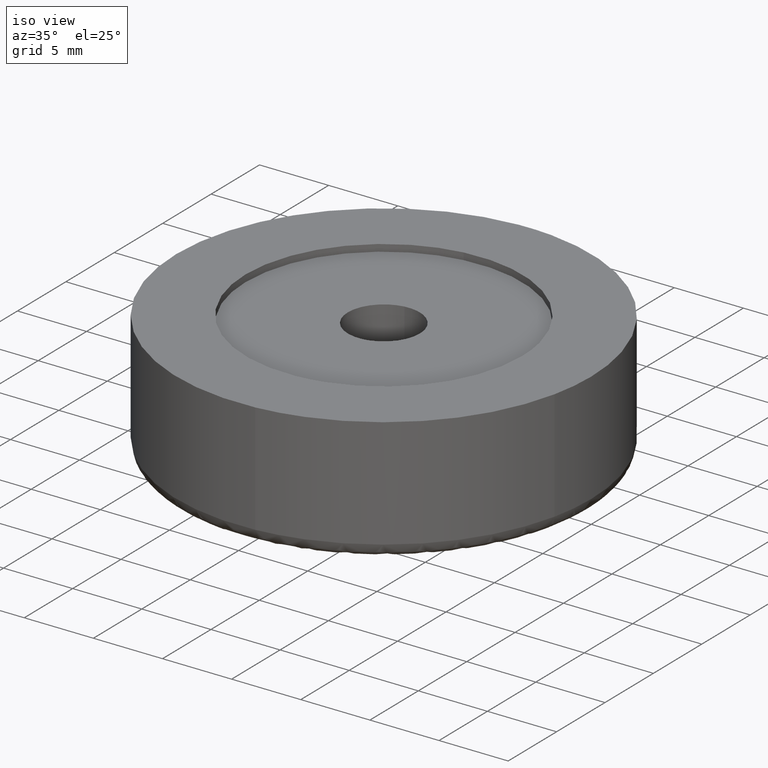
[diagram: clean part render]
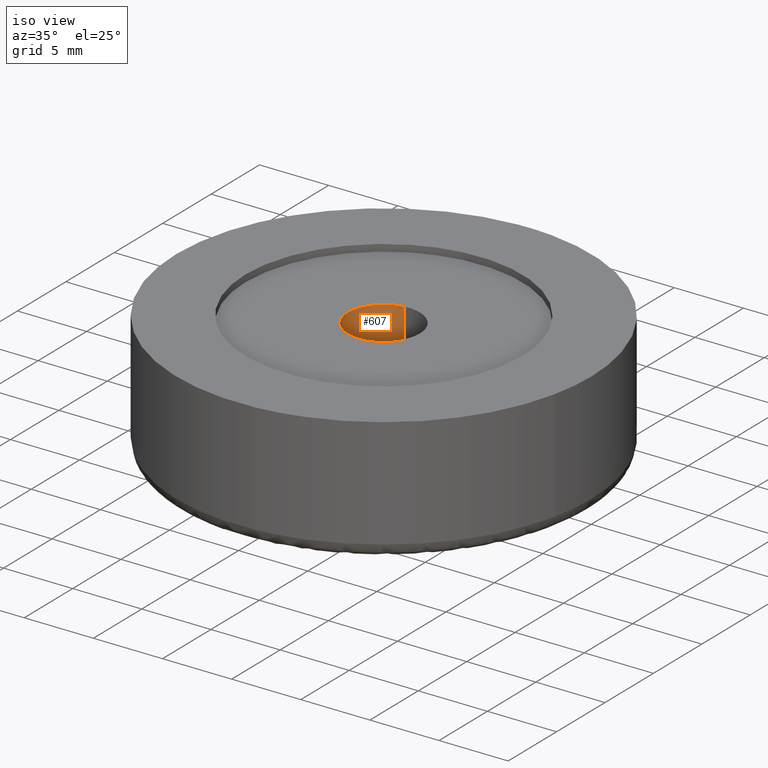
[diagram: same view with one face highlighted and labeled with its STEP entity id]
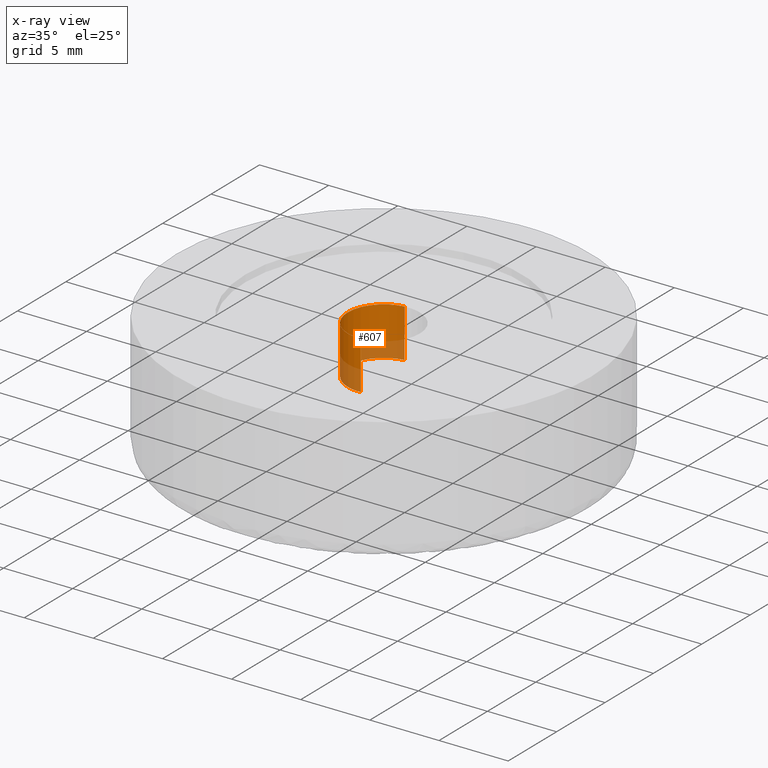
[diagram: x-ray of the same camera — body ghosted, the highlighted face saturated]
A machine part, iso view. The second image highlights one B-rep face of the part: STEP entity #607.
The next image is the same camera in x-ray: the body ghosted, the highlighted face saturated — about 32% of this face is hidden behind the body in this view.
In plain terms, the highlighted face is a freeform B-spline surface patch.
Its self-contained STEP definition (entity closure, byte-faithful):
#444=CARTESIAN_POINT('',(-0.306886087264373,2.581825115966397,4.999999999999961));
#445=VERTEX_POINT('',#444);
#463=CARTESIAN_POINT('',(0.158726202832254,-2.595150475894308,5.0));
#464=VERTEX_POINT('',#463);
#478=CARTESIAN_POINT('',(0.158726202832255,-2.595150475894308,8.500000000000000));
#479=VERTEX_POINT('',#478);
#480=CARTESIAN_POINT('',(0.158726202832255,-2.595150475894308,8.500000000000000));
#481=CARTESIAN_POINT('',(0.158726202832254,-2.595150475894308,5.0));
#482=QUASI_UNIFORM_CURVE('',1,(#480,#481),.UNSPECIFIED.,.F.,.U.);
#483=EDGE_CURVE('',#479,#464,#482,.T.);
#500=CARTESIAN_POINT('',(-0.306886123398112,2.581825111671437,8.500000000000002));
#501=VERTEX_POINT('',#500);
#517=CARTESIAN_POINT('',(-0.306886123398112,2.581825111671437,8.500000000000002));
#518=CARTESIAN_POINT('',(-0.306886087264373,2.581825115966397,4.999999999999961));
#519=QUASI_UNIFORM_CURVE('',1,(#517,#518),.UNSPECIFIED.,.F.,.U.);
#520=EDGE_CURVE('',#501,#445,#519,.T.);
#525=CARTESIAN_POINT('',(0.158726202790628,-2.595150475896853,8.587500000000002));
#526=CARTESIAN_POINT('',(-2.436424273106225,-2.753876678687481,8.587500000000002));
#527=CARTESIAN_POINT('',(-2.595150475896853,-0.158726202790628,8.587500000000002));
#528=CARTESIAN_POINT('',(-2.745044111504571,2.292013076182702,8.587500000000002));
#529=CARTESIAN_POINT('',(-0.306889010107572,2.581824768545533,8.587500000000002));
#530=CARTESIAN_POINT('',(0.158726202790628,-2.595150475896853,4.910312499999999));
#531=CARTESIAN_POINT('',(-2.436424273106225,-2.753876678687481,4.910312500000000));
#532=CARTESIAN_POINT('',(-2.595150475896853,-0.158726202790628,4.910312499999999));
#533=CARTESIAN_POINT('',(-2.745044111504571,2.292013076182702,4.910312499999999));
#534=CARTESIAN_POINT('',(-0.306889010107572,2.581824768545533,4.910312499999999));
#542=(BOUNDED_SURFACE()B_SPLINE_SURFACE(2,1,((#525,#530),(#526,#531),(#527,#532),(#528,#533),(#529,#534)),.UNSPECIFIED.,.F.,.F.,.U.)B_SPLINE_SURFACE_WITH_KNOTS((3,2,3),(2,2),(0.0,4.307821048680188,8.443329255413167),(0.0,3.677187500000004),.UNSPECIFIED.)GEOMETRIC_REPRESENTATION_ITEM()RATIONAL_B_SPLINE_SURFACE(((1.0,1.0),(0.707106781186548,0.707106781186548),(1.0,1.0),(0.718822509939086,0.718822509939086),(0.977505800795127,0.977505800795127)))REPRESENTATION_ITEM('')SURFACE());
#543=CARTESIAN_POINT('',(-2.600000000000000,0.0,5.0));
#544=VERTEX_POINT('',#543);
#545=CARTESIAN_POINT('',(-2.600000000000000,0.0,5.0));
#546=CARTESIAN_POINT('',(-2.600000000000001,2.309256400148017,5.000000000000001));
#547=CARTESIAN_POINT('',(-0.306886087264373,2.581825115966398,4.999999999999961));
#555=(BOUNDED_CURVE()B_SPLINE_CURVE(2,(#545,#546,#547),.UNSPECIFIED.,.F.,.U.)B_SPLINE_CURVE_WITH_KNOTS((3,3),(0.0,0.229562664841577),.UNSPECIFIED.)CURVE()GEOMETRIC_REPRESENTATION_ITEM()RATIONAL_B_SPLINE_CURVE((1.0,0.731050608700628,0.956027129194886))REPRESENTATION_ITEM(''));
#556=EDGE_CURVE('',#544,#445,#555,.T.);
#557=ORIENTED_EDGE('',*,*,#556,.T.);
#558=ORIENTED_EDGE('',*,*,#520,.F.);
#559=CARTESIAN_POINT('',(-2.600000000000000,0.0,8.500000000000000));
#560=VERTEX_POINT('',#559);
#561=CARTESIAN_POINT('',(-2.600000000000000,0.0,8.500000000000000));
#562=CARTESIAN_POINT('',(-2.600000000000000,2.309256367601487,8.500000000000000));
#563=CARTESIAN_POINT('',(-0.306886123398112,2.581825111671437,8.500000000000002));
#571=(BOUNDED_CURVE()B_SPLINE_CURVE(2,(#561,#562,#563),.UNSPECIFIED.,.F.,.U.)B_SPLINE_CURVE_WITH_KNOTS((3,3),(0.0,0.229562662476304),.UNSPECIFIED.)CURVE()GEOMETRIC_REPRESENTATION_ITEM()RATIONAL_B_SPLINE_CURVE((1.0,0.731050611471717,0.956027124558846))REPRESENTATION_ITEM(''));
#572=EDGE_CURVE('',#560,#501,#571,.T.);
#573=ORIENTED_EDGE('',*,*,#572,.F.);
#574=CARTESIAN_POINT('',(0.158726202832255,-2.595150475894308,8.500000000000000));
#575=CARTESIAN_POINT('',(0.079437184618074,-2.600000000000000,8.500000000000000));
#576=CARTESIAN_POINT('',(0.0,-2.600000000000000,8.500000000000000));
#577=CARTESIAN_POINT('',(-2.600000000000001,-2.600000000000001,8.500000000000002));
#578=CARTESIAN_POINT('',(-2.600000000000000,0.0,8.500000000000000));
#586=(BOUNDED_CURVE()B_SPLINE_CURVE(2,(#574,#575,#576,#577,#578),.UNSPECIFIED.,.F.,.U.)B_SPLINE_CURVE_WITH_KNOTS((3,2,3),(0.739332962236433,0.750000000000000,1.0),.UNSPECIFIED.)CURVE()GEOMETRIC_REPRESENTATION_ITEM()RATIONAL_B_SPLINE_CURVE((0.976072041661338,0.987502787896897,1.0,0.707106781186548,1.0))REPRESENTATION_ITEM(''));
#587=EDGE_CURVE('',#479,#560,#586,.T.);
#588=ORIENTED_EDGE('',*,*,#587,.F.);
#589=ORIENTED_EDGE('',*,*,#483,.T.);
#590=CARTESIAN_POINT('',(0.158726202832254,-2.595150475894307,5.0));
#591=CARTESIAN_POINT('',(0.079437184618073,-2.600000000000000,5.0));
#592=CARTESIAN_POINT('',(0.0,-2.600000000000000,5.0));
#593=CARTESIAN_POINT('',(-2.600000000000001,-2.600000000000001,5.000000000000001));
#594=CARTESIAN_POINT('',(-2.600000000000000,0.0,5.0));
#602=(BOUNDED_CURVE()B_SPLINE_CURVE(2,(#590,#591,#592,#593,#594),.UNSPECIFIED.,.F.,.U.)B_SPLINE_CURVE_WITH_KNOTS((3,2,3),(0.739332962236433,0.750000000000000,1.0),.UNSPECIFIED.)CURVE()GEOMETRIC_REPRESENTATION_ITEM()RATIONAL_B_SPLINE_CURVE((0.976072041661339,0.987502787896897,1.0,0.707106781186548,1.0))REPRESENTATION_ITEM(''));
#603=EDGE_CURVE('',#464,#544,#602,.T.);
#604=ORIENTED_EDGE('',*,*,#603,.T.);
#605=EDGE_LOOP('',(#557,#558,#573,#588,#589,#604));
#606=FACE_OUTER_BOUND('',#605,.T.);
#607=ADVANCED_FACE('',(#606),#542,.F.);